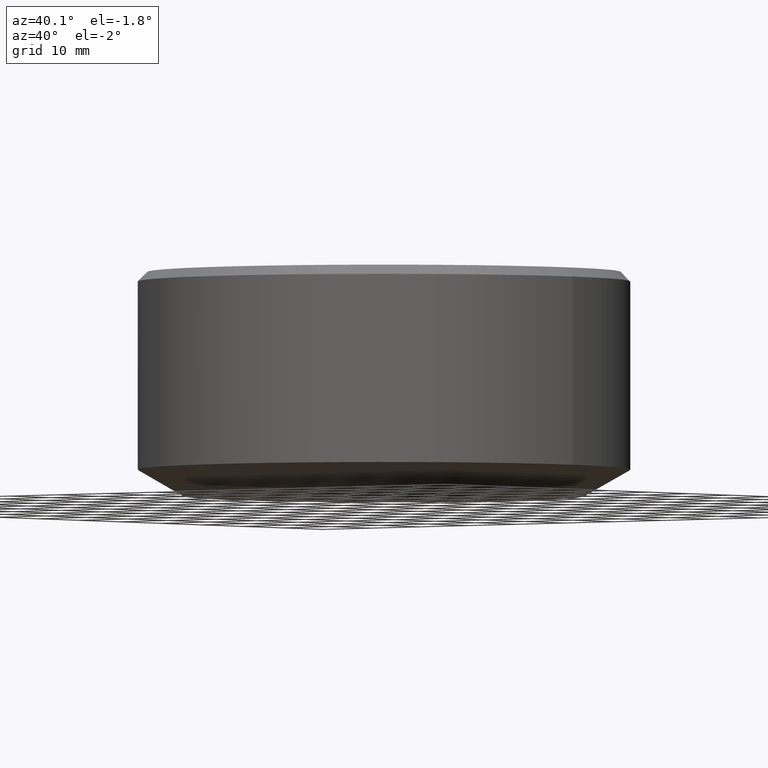
[diagram: clean part render]
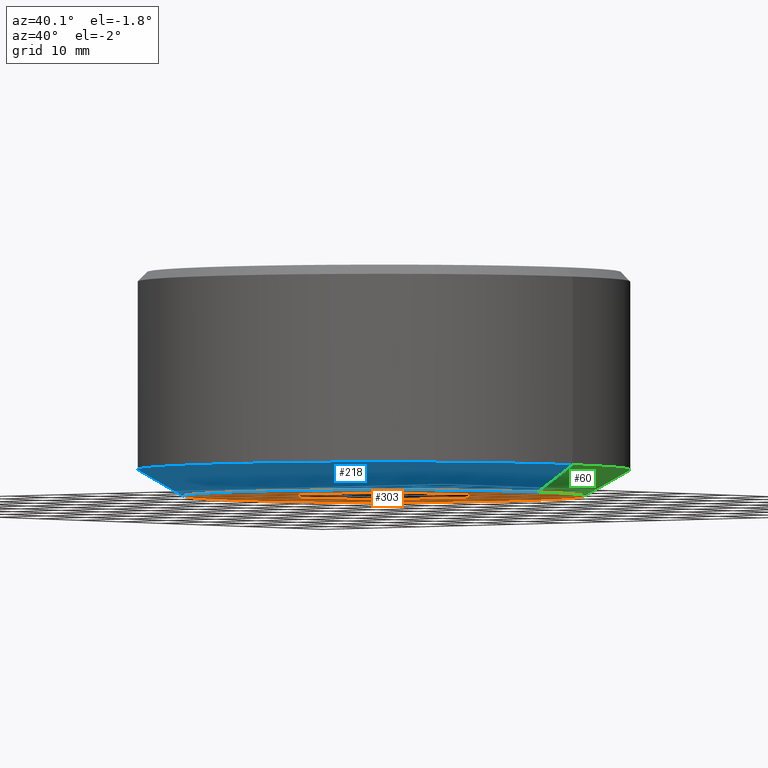
[diagram: same view with three faces highlighted in distinct colors, each labeled with its STEP entity id]
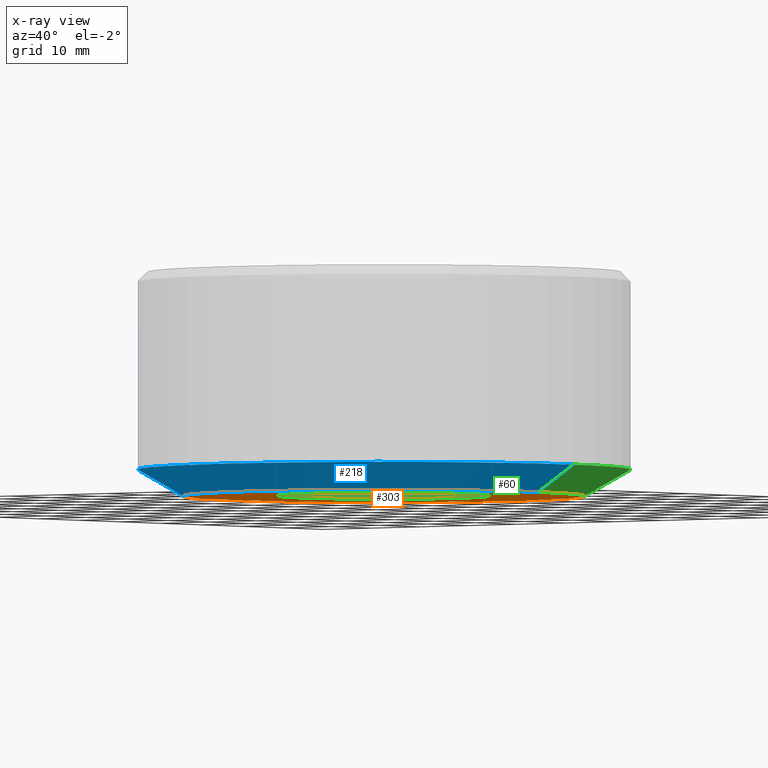
[diagram: x-ray of the same camera — body ghosted, the three highlighted faces saturated]
A machine part, auxiliary view with three faces highlighted in distinct colors.
The next image is the same camera in x-ray (body ghosted, the three faces saturated) — at least one of them is partly hidden behind the body in this view.
Their STEP definitions:

[orange] entity #303 — the highlighted planar face has unit normal (0, -0, 1).
#1 = DIRECTION ( 'NONE',  ( -0.0000000000000000000, -0.0000000000000000000, 1.000000000000000000 ) ) ;
#35 = AXIS2_PLACEMENT_3D ( 'NONE', #269, #102, #299 ) ;
#37 = CARTESIAN_POINT ( 'NONE',  ( 0.0000000000000000000, 31.75000000000000000, -17.69999999999999900 ) ) ;
#41 = AXIS2_PLACEMENT_3D ( 'NONE', #37, #333, #178 ) ;
#48 = CIRCLE ( 'NONE', #254, 17.00000000000000000 ) ;
#52 = VERTEX_POINT ( 'NONE', #97 ) ;
#58 = DIRECTION ( 'NONE',  ( -0.0000000000000000000, -0.0000000000000000000, 1.000000000000000000 ) ) ;
#67 = DIRECTION ( 'NONE',  ( -0.0000000000000000000, -0.0000000000000000000, 1.000000000000000000 ) ) ;
#69 = CARTESIAN_POINT ( 'NONE',  ( 17.00000000000000000, 0.0000000000000000000, -17.70000000000000600 ) ) ;
#91 = ORIENTED_EDGE ( 'NONE', *, *, #328, .T. ) ;
#97 = CARTESIAN_POINT ( 'NONE',  ( -17.00000000000000000, 2.081899558550500300E-015, -17.70000000000000600 ) ) ;
#101 = ORIENTED_EDGE ( 'NONE', *, *, #181, .F. ) ;
#102 = DIRECTION ( 'NONE',  ( -0.0000000000000000000, -0.0000000000000000000, 1.000000000000000000 ) ) ;
#104 = CARTESIAN_POINT ( 'NONE',  ( -31.75000000000000000, 4.329126434985894400E-015, -17.69999999999999900 ) ) ;
#114 = PLANE ( 'NONE',  #41 ) ;
#121 = VERTEX_POINT ( 'NONE', #104 ) ;
#127 = DIRECTION ( 'NONE',  ( 1.000000000000000000, 0.0000000000000000000, 0.0000000000000000000 ) ) ;
#138 = ORIENTED_EDGE ( 'NONE', *, *, #280, .T. ) ;
#148 = DIRECTION ( 'NONE',  ( 1.000000000000000000, 0.0000000000000000000, 0.0000000000000000000 ) ) ;
#155 = AXIS2_PLACEMENT_3D ( 'NONE', #167, #1, #194 ) ;
#164 = CIRCLE ( 'NONE', #35, 31.75000000000000000 ) ;
#167 = CARTESIAN_POINT ( 'NONE',  ( 0.0000000000000000000, 0.0000000000000000000, -17.70000000000000600 ) ) ;
#178 = DIRECTION ( 'NONE',  ( 1.000000000000000000, 0.0000000000000000000, 0.0000000000000000000 ) ) ;
#181 = EDGE_CURVE ( 'NONE', #236, #121, #164, .T. ) ;
#188 = FACE_OUTER_BOUND ( 'NONE', #338, .T. ) ;
#194 = DIRECTION ( 'NONE',  ( 1.000000000000000000, 0.0000000000000000000, 0.0000000000000000000 ) ) ;
#197 = CIRCLE ( 'NONE', #274, 31.75000000000000000 ) ;
#202 = ORIENTED_EDGE ( 'NONE', *, *, #292, .F. ) ;
#228 = CARTESIAN_POINT ( 'NONE',  ( 0.0000000000000000000, 0.0000000000000000000, -17.70000000000000600 ) ) ;
#229 = VERTEX_POINT ( 'NONE', #69 ) ;
#236 = VERTEX_POINT ( 'NONE', #256 ) ;
#237 = CARTESIAN_POINT ( 'NONE',  ( 0.0000000000000000000, 0.0000000000000000000, -17.69999999999999900 ) ) ;
#254 = AXIS2_PLACEMENT_3D ( 'NONE', #228, #58, #127 ) ;
#256 = CARTESIAN_POINT ( 'NONE',  ( 31.75000000000000000, 0.0000000000000000000, -17.69999999999999900 ) ) ;
#269 = CARTESIAN_POINT ( 'NONE',  ( 0.0000000000000000000, 0.0000000000000000000, -17.69999999999999900 ) ) ;
#274 = AXIS2_PLACEMENT_3D ( 'NONE', #237, #67, #148 ) ;
#279 = EDGE_LOOP ( 'NONE', ( #91, #138 ) ) ;
#280 = EDGE_CURVE ( 'NONE', #52, #229, #48, .T. ) ;
#286 = CIRCLE ( 'NONE', #155, 17.00000000000000000 ) ;
#292 = EDGE_CURVE ( 'NONE', #121, #236, #197, .T. ) ;
#297 = FACE_BOUND ( 'NONE', #279, .T. ) ;
#299 = DIRECTION ( 'NONE',  ( 1.000000000000000000, 0.0000000000000000000, 0.0000000000000000000 ) ) ;
#303 = ADVANCED_FACE ( 'NONE', ( #188, #297 ), #114, .F. ) ;
#328 = EDGE_CURVE ( 'NONE', #229, #52, #286, .T. ) ;
#333 = DIRECTION ( 'NONE',  ( 0.0000000000000000000, -0.0000000000000000000, 1.000000000000000000 ) ) ;
#338 = EDGE_LOOP ( 'NONE', ( #101, #202 ) ) ;

[blue] entity #218 — the highlighted conical surface has half-angle 60 deg.
#4 = FACE_OUTER_BOUND ( 'NONE', #50, .T. ) ;
#10 = ORIENTED_EDGE ( 'NONE', *, *, #235, .F. ) ;
#14 = CARTESIAN_POINT ( 'NONE',  ( 31.75000000000000000, 0.0000000000000000000, -17.69999999999999900 ) ) ;
#47 = LINE ( 'NONE', #206, #263 ) ;
#50 = EDGE_LOOP ( 'NONE', ( #10, #64, #199, #61 ) ) ;
#61 = ORIENTED_EDGE ( 'NONE', *, *, #287, .F. ) ;
#64 = ORIENTED_EDGE ( 'NONE', *, *, #292, .T. ) ;
#65 = DIRECTION ( 'NONE',  ( 0.8660254037844396000, 0.0000000000000000000, 0.4999999999999983900 ) ) ;
#67 = DIRECTION ( 'NONE',  ( -0.0000000000000000000, -0.0000000000000000000, 1.000000000000000000 ) ) ;
#70 = AXIS2_PLACEMENT_3D ( 'NONE', #150, #335, #179 ) ;
#78 = LINE ( 'NONE', #14, #230 ) ;
#95 = AXIS2_PLACEMENT_3D ( 'NONE', #119, #239, #151 ) ;
#104 = CARTESIAN_POINT ( 'NONE',  ( -31.75000000000000000, 4.329126434985894400E-015, -17.69999999999999900 ) ) ;
#119 = CARTESIAN_POINT ( 'NONE',  ( 0.0000000000000000000, 0.0000000000000000000, -17.69999999999999900 ) ) ;
#121 = VERTEX_POINT ( 'NONE', #104 ) ;
#148 = DIRECTION ( 'NONE',  ( 1.000000000000000000, 0.0000000000000000000, 0.0000000000000000000 ) ) ;
#150 = CARTESIAN_POINT ( 'NONE',  ( 0.0000000000000000000, 0.0000000000000000000, -13.54307806183471100 ) ) ;
#151 = DIRECTION ( 'NONE',  ( 1.000000000000000000, 0.0000000000000000000, 0.0000000000000000000 ) ) ;
#179 = DIRECTION ( 'NONE',  ( 1.000000000000000000, 0.0000000000000000000, 0.0000000000000000000 ) ) ;
#180 = CARTESIAN_POINT ( 'NONE',  ( 38.95000000000000300, 0.0000000000000000000, -13.54307806183471100 ) ) ;
#197 = CIRCLE ( 'NONE', #274, 31.75000000000000000 ) ;
#199 = ORIENTED_EDGE ( 'NONE', *, *, #309, .T. ) ;
#206 = CARTESIAN_POINT ( 'NONE',  ( -31.75000000000000000, 3.888253587292846500E-015, -17.69999999999999900 ) ) ;
#211 = VERTEX_POINT ( 'NONE', #311 ) ;
#218 = ADVANCED_FACE ( 'NONE', ( #4 ), #253, .T. ) ;
#219 = VERTEX_POINT ( 'NONE', #180 ) ;
#230 = VECTOR ( 'NONE', #65, 1000.000000000000000 ) ;
#235 = EDGE_CURVE ( 'NONE', #121, #211, #47, .T. ) ;
#236 = VERTEX_POINT ( 'NONE', #256 ) ;
#237 = CARTESIAN_POINT ( 'NONE',  ( 0.0000000000000000000, 0.0000000000000000000, -17.69999999999999900 ) ) ;
#239 = DIRECTION ( 'NONE',  ( -0.0000000000000000000, -0.0000000000000000000, 1.000000000000000000 ) ) ;
#249 = DIRECTION ( 'NONE',  ( -0.8660254037844396000, 1.060575238724908000E-016, 0.4999999999999983900 ) ) ;
#253 = CONICAL_SURFACE ( 'NONE', #95, 31.75000000000000000, 1.047197551196599600 ) ;
#256 = CARTESIAN_POINT ( 'NONE',  ( 31.75000000000000000, 0.0000000000000000000, -17.69999999999999900 ) ) ;
#263 = VECTOR ( 'NONE', #249, 1000.000000000000000 ) ;
#274 = AXIS2_PLACEMENT_3D ( 'NONE', #237, #67, #148 ) ;
#287 = EDGE_CURVE ( 'NONE', #211, #219, #322, .T. ) ;
#292 = EDGE_CURVE ( 'NONE', #121, #236, #197, .T. ) ;
#309 = EDGE_CURVE ( 'NONE', #236, #219, #78, .T. ) ;
#311 = CARTESIAN_POINT ( 'NONE',  ( -38.95000000000000300, 4.769999282678941600E-015, -13.54307806183471100 ) ) ;
#322 = CIRCLE ( 'NONE', #70, 38.95000000000000300 ) ;
#335 = DIRECTION ( 'NONE',  ( -0.0000000000000000000, -0.0000000000000000000, 1.000000000000000000 ) ) ;

[green] entity #60 — the highlighted conical surface has half-angle 60 deg.
#7 = ORIENTED_EDGE ( 'NONE', *, *, #235, .T. ) ;
#14 = CARTESIAN_POINT ( 'NONE',  ( 31.75000000000000000, 0.0000000000000000000, -17.69999999999999900 ) ) ;
#35 = AXIS2_PLACEMENT_3D ( 'NONE', #269, #102, #299 ) ;
#47 = LINE ( 'NONE', #206, #263 ) ;
#53 = ORIENTED_EDGE ( 'NONE', *, *, #309, .F. ) ;
#60 = ADVANCED_FACE ( 'NONE', ( #330 ), #158, .T. ) ;
#63 = ORIENTED_EDGE ( 'NONE', *, *, #93, .F. ) ;
#65 = DIRECTION ( 'NONE',  ( 0.8660254037844396000, 0.0000000000000000000, 0.4999999999999983900 ) ) ;
#78 = LINE ( 'NONE', #14, #230 ) ;
#85 = AXIS2_PLACEMENT_3D ( 'NONE', #261, #156, #169 ) ;
#93 = EDGE_CURVE ( 'NONE', #219, #211, #110, .T. ) ;
#102 = DIRECTION ( 'NONE',  ( -0.0000000000000000000, -0.0000000000000000000, 1.000000000000000000 ) ) ;
#104 = CARTESIAN_POINT ( 'NONE',  ( -31.75000000000000000, 4.329126434985894400E-015, -17.69999999999999900 ) ) ;
#110 = CIRCLE ( 'NONE', #227, 38.95000000000000300 ) ;
#121 = VERTEX_POINT ( 'NONE', #104 ) ;
#143 = CARTESIAN_POINT ( 'NONE',  ( 0.0000000000000000000, 0.0000000000000000000, -13.54307806183471100 ) ) ;
#156 = DIRECTION ( 'NONE',  ( -0.0000000000000000000, -0.0000000000000000000, 1.000000000000000000 ) ) ;
#158 = CONICAL_SURFACE ( 'NONE', #85, 31.75000000000000000, 1.047197551196599600 ) ;
#164 = CIRCLE ( 'NONE', #35, 31.75000000000000000 ) ;
#169 = DIRECTION ( 'NONE',  ( 1.000000000000000000, 0.0000000000000000000, 0.0000000000000000000 ) ) ;
#174 = DIRECTION ( 'NONE',  ( 1.000000000000000000, 0.0000000000000000000, 0.0000000000000000000 ) ) ;
#180 = CARTESIAN_POINT ( 'NONE',  ( 38.95000000000000300, 0.0000000000000000000, -13.54307806183471100 ) ) ;
#181 = EDGE_CURVE ( 'NONE', #236, #121, #164, .T. ) ;
#206 = CARTESIAN_POINT ( 'NONE',  ( -31.75000000000000000, 3.888253587292846500E-015, -17.69999999999999900 ) ) ;
#211 = VERTEX_POINT ( 'NONE', #311 ) ;
#212 = ORIENTED_EDGE ( 'NONE', *, *, #181, .T. ) ;
#219 = VERTEX_POINT ( 'NONE', #180 ) ;
#227 = AXIS2_PLACEMENT_3D ( 'NONE', #143, #327, #174 ) ;
#230 = VECTOR ( 'NONE', #65, 1000.000000000000000 ) ;
#235 = EDGE_CURVE ( 'NONE', #121, #211, #47, .T. ) ;
#236 = VERTEX_POINT ( 'NONE', #256 ) ;
#249 = DIRECTION ( 'NONE',  ( -0.8660254037844396000, 1.060575238724908000E-016, 0.4999999999999983900 ) ) ;
#256 = CARTESIAN_POINT ( 'NONE',  ( 31.75000000000000000, 0.0000000000000000000, -17.69999999999999900 ) ) ;
#261 = CARTESIAN_POINT ( 'NONE',  ( 0.0000000000000000000, 0.0000000000000000000, -17.69999999999999900 ) ) ;
#263 = VECTOR ( 'NONE', #249, 1000.000000000000000 ) ;
#269 = CARTESIAN_POINT ( 'NONE',  ( 0.0000000000000000000, 0.0000000000000000000, -17.69999999999999900 ) ) ;
#296 = EDGE_LOOP ( 'NONE', ( #212, #7, #63, #53 ) ) ;
#299 = DIRECTION ( 'NONE',  ( 1.000000000000000000, 0.0000000000000000000, 0.0000000000000000000 ) ) ;
#309 = EDGE_CURVE ( 'NONE', #236, #219, #78, .T. ) ;
#311 = CARTESIAN_POINT ( 'NONE',  ( -38.95000000000000300, 4.769999282678941600E-015, -13.54307806183471100 ) ) ;
#327 = DIRECTION ( 'NONE',  ( -0.0000000000000000000, -0.0000000000000000000, 1.000000000000000000 ) ) ;
#330 = FACE_OUTER_BOUND ( 'NONE', #296, .T. ) ;